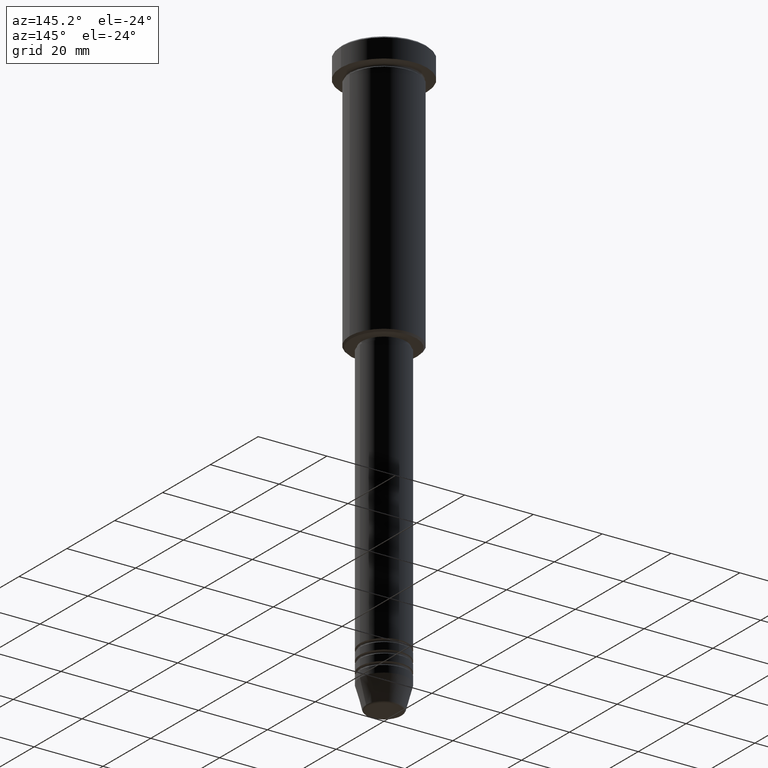
[diagram: clean part render]
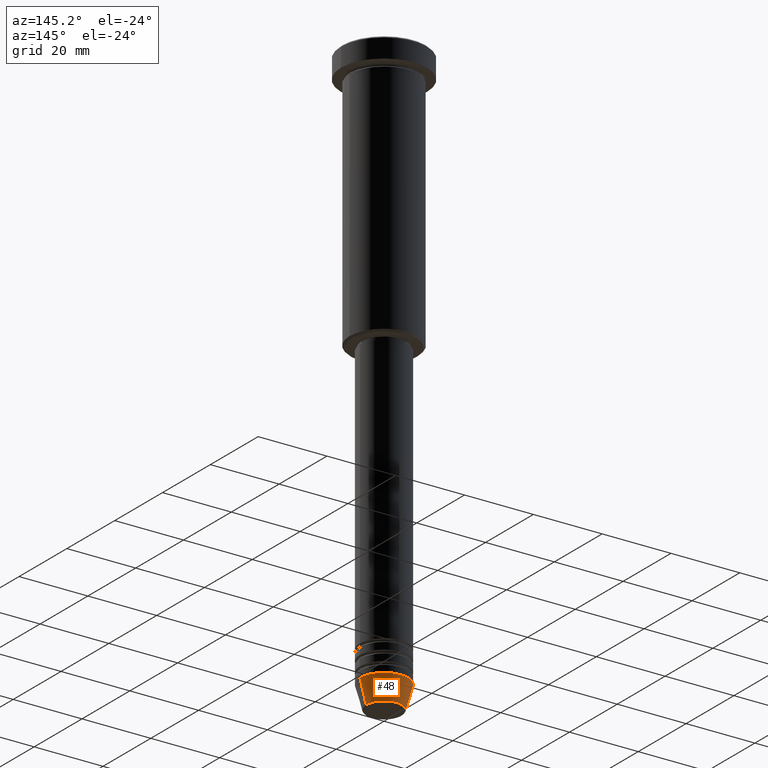
[diagram: same view with one face highlighted and labeled with its STEP entity id]
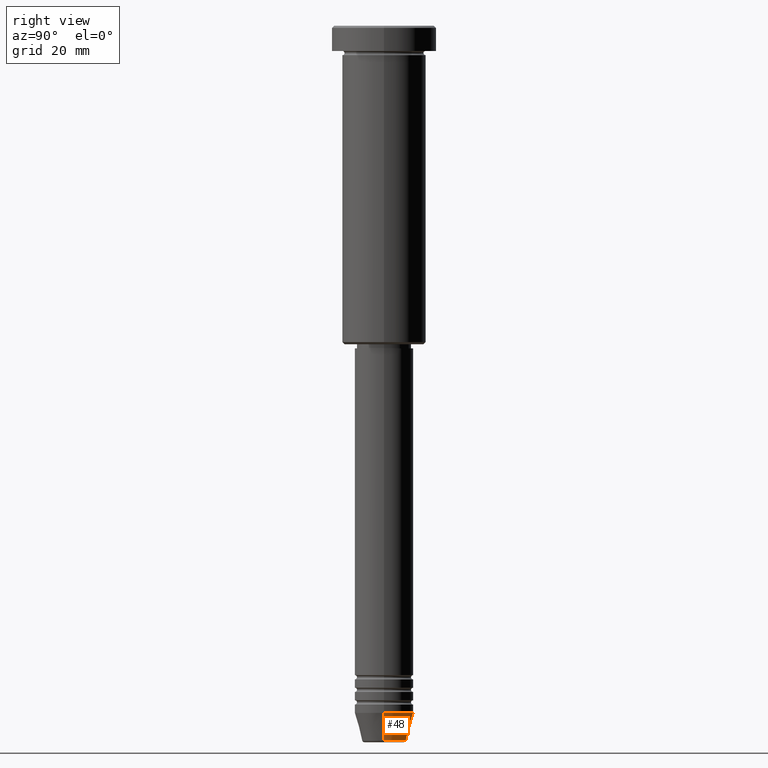
[diagram: same view with one face highlighted and labeled with its STEP entity id]
A machine part, auxiliary view. The second image highlights one B-rep face of the part: STEP entity #48.
A second angle (right view) of the same face is appended — the face is thin or edge-on in the first view.
In plain terms, the highlighted conical surface has half-angle 15 deg.
Its self-contained STEP definition (entity closure, byte-faithful):
#13 = EDGE_LOOP ( 'NONE', ( #943, #736, #986, #273 ) ) ;
#19 = EDGE_CURVE ( 'NONE', #567, #801, #349, .T. ) ;
#32 = DIRECTION ( 'NONE',  ( -0.000000000000000000, -0.000000000000000000, 1.000000000000000000 ) ) ;
#39 = DIRECTION ( 'NONE',  ( -0.2588190451025213501, 3.169619151431772337E-17, 0.9659258262890680902 ) ) ;
#43 = EDGE_CURVE ( 'NONE', #112, #801, #1049, .T. ) ;
#48 = ADVANCED_FACE ( 'NONE', ( #410 ), #1177, .T. ) ;
#84 = EDGE_CURVE ( 'NONE', #838, #567, #144, .T. ) ;
#97 = CIRCLE ( 'NONE', #518, 5.223655072137196598 ) ;
#112 = VERTEX_POINT ( 'NONE', #1164 ) ;
#144 = LINE ( 'NONE', #800, #807 ) ;
#273 = ORIENTED_EDGE ( 'NONE', *, *, #84, .F. ) ;
#321 = CARTESIAN_POINT ( 'NONE',  ( 7.000000000000000000, 0.000000000000000000, -164.0000000000000000 ) ) ;
#349 = CIRCLE ( 'NONE', #562, 7.000000000000000000 ) ;
#376 = DIRECTION ( 'NONE',  ( -0.000000000000000000, -0.000000000000000000, 1.000000000000000000 ) ) ;
#393 = CARTESIAN_POINT ( 'NONE',  ( 0.000000000000000000, 0.000000000000000000, -164.0000000000000000 ) ) ;
#398 = CARTESIAN_POINT ( 'NONE',  ( -7.000000000000000000, 8.572527594031473190E-16, -164.0000000000000000 ) ) ;
#410 = FACE_OUTER_BOUND ( 'NONE', #13, .T. ) ;
#510 = CARTESIAN_POINT ( 'NONE',  ( -7.000000000000000000, 8.572527594031473190E-16, -164.0000000000000000 ) ) ;
#518 = AXIS2_PLACEMENT_3D ( 'NONE', #841, #376, #753 ) ;
#562 = AXIS2_PLACEMENT_3D ( 'NONE', #393, #32, #872 ) ;
#567 = VERTEX_POINT ( 'NONE', #321 ) ;
#588 = EDGE_CURVE ( 'NONE', #838, #112, #97, .T. ) ;
#596 = CARTESIAN_POINT ( 'NONE',  ( 0.000000000000000000, 0.000000000000000000, -164.0000000000000000 ) ) ;
#736 = ORIENTED_EDGE ( 'NONE', *, *, #43, .T. ) ;
#753 = DIRECTION ( 'NONE',  ( 1.000000000000000000, 0.000000000000000000, 0.000000000000000000 ) ) ;
#800 = CARTESIAN_POINT ( 'NONE',  ( 7.000000000000000000, 0.000000000000000000, -164.0000000000000000 ) ) ;
#801 = VERTEX_POINT ( 'NONE', #398 ) ;
#807 = VECTOR ( 'NONE', #985, 1000.000000000000000 ) ;
#838 = VERTEX_POINT ( 'NONE', #1088 ) ;
#841 = CARTESIAN_POINT ( 'NONE',  ( 0.000000000000000000, 0.000000000000000000, -170.6294095225512422 ) ) ;
#872 = DIRECTION ( 'NONE',  ( 1.000000000000000000, 0.000000000000000000, 0.000000000000000000 ) ) ;
#943 = ORIENTED_EDGE ( 'NONE', *, *, #588, .T. ) ;
#954 = DIRECTION ( 'NONE',  ( -0.000000000000000000, -0.000000000000000000, 1.000000000000000000 ) ) ;
#961 = AXIS2_PLACEMENT_3D ( 'NONE', #596, #954, #1147 ) ;
#985 = DIRECTION ( 'NONE',  ( 0.2588190451025213501, 0.000000000000000000, 0.9659258262890680902 ) ) ;
#986 = ORIENTED_EDGE ( 'NONE', *, *, #19, .F. ) ;
#1049 = LINE ( 'NONE', #510, #1139 ) ;
#1088 = CARTESIAN_POINT ( 'NONE',  ( 5.223655072137196598, 0.000000000000000000, -170.6294095225512422 ) ) ;
#1139 = VECTOR ( 'NONE', #39, 1000.000000000000000 ) ;
#1147 = DIRECTION ( 'NONE',  ( 1.000000000000000000, 0.000000000000000000, 0.000000000000000000 ) ) ;
#1164 = CARTESIAN_POINT ( 'NONE',  ( -5.223655072137196598, 7.484830028987062146E-16, -170.6294095225512422 ) ) ;
#1177 = CONICAL_SURFACE ( 'NONE', #961, 7.000000000000000000, 0.2617993877991500740 ) ;